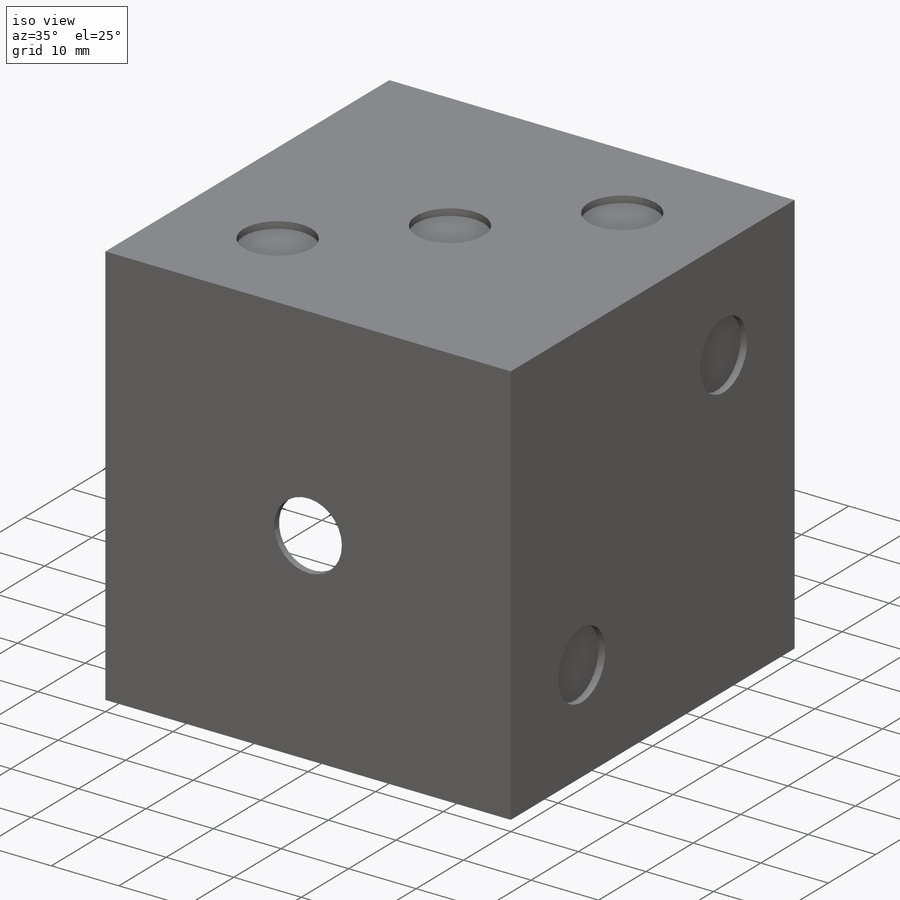
[diagram: iso view]
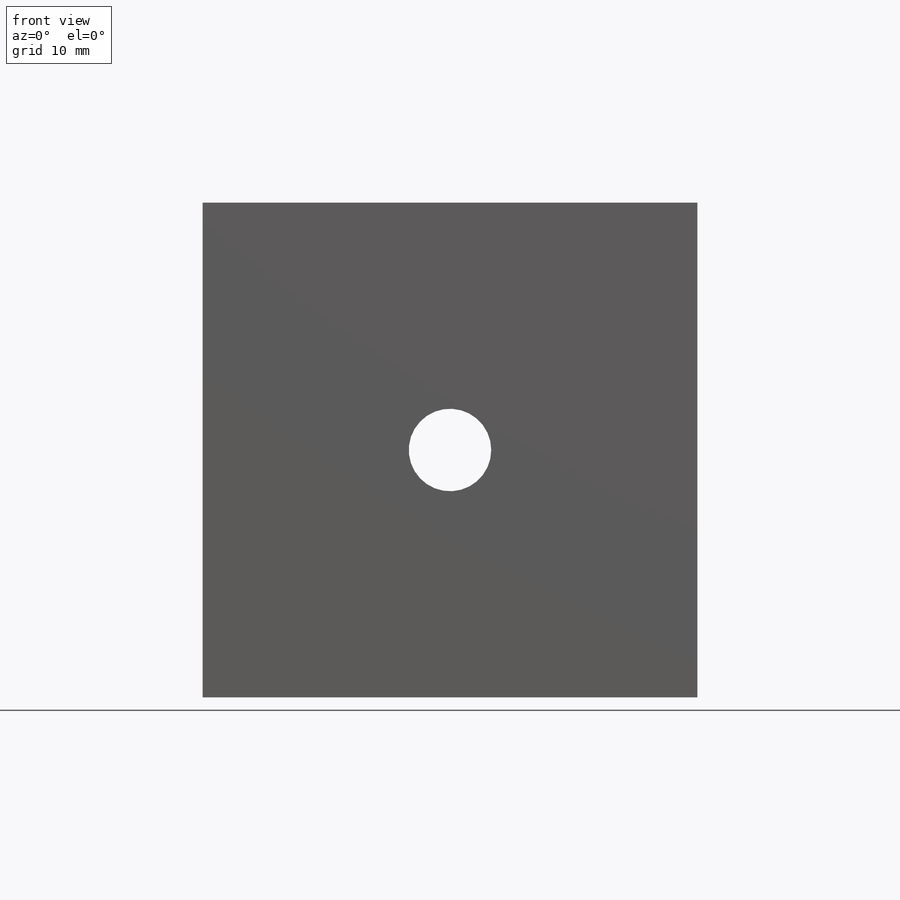
[diagram: front view]
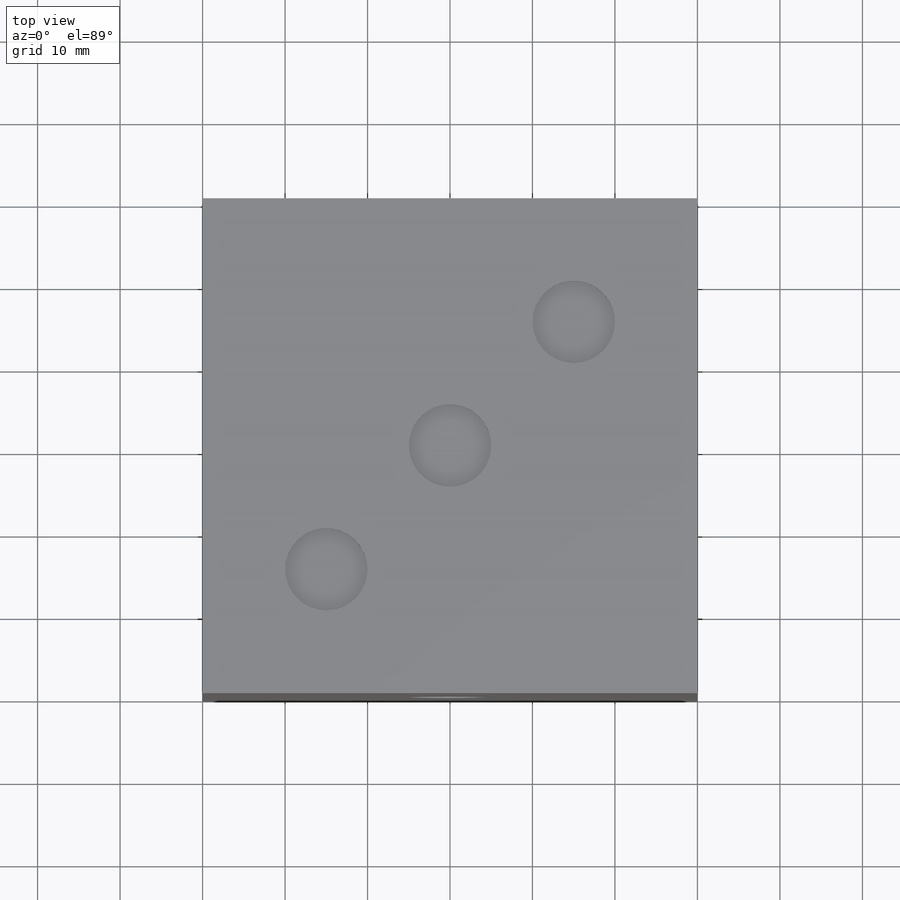
[diagram: top view]
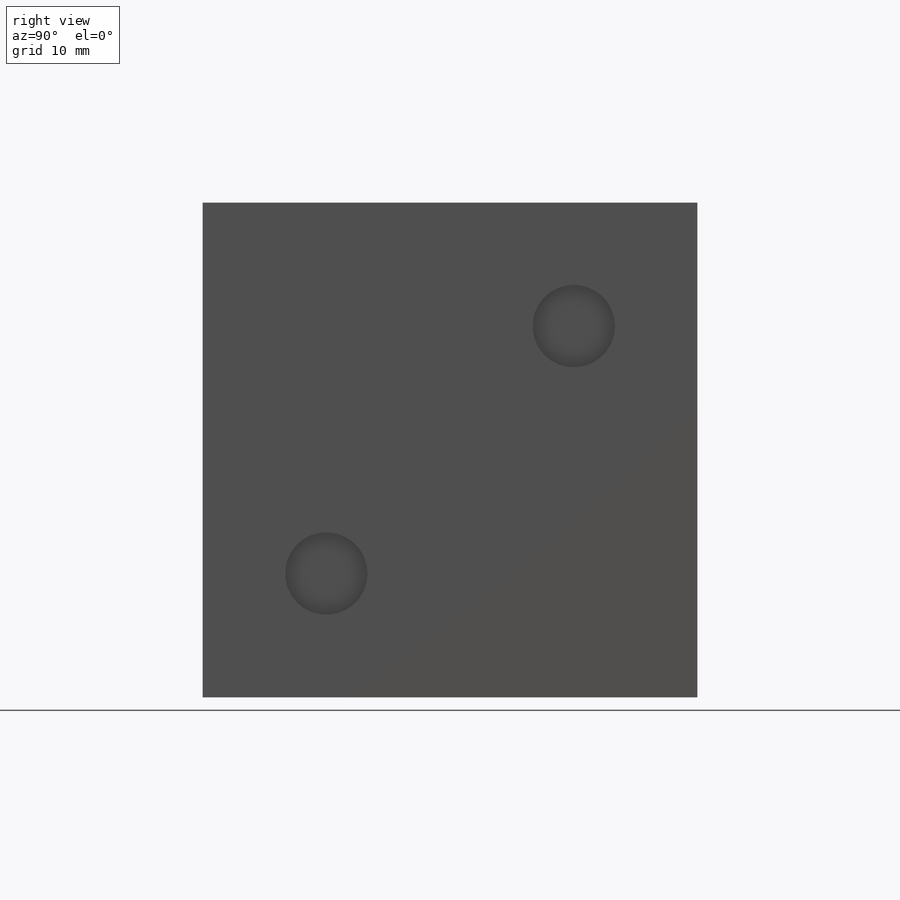
[diagram: right view]
SOLIDWORKS PART (.sldprt)
format: sldprt  version: not decoded by parser v0  size: 468,992 bytes
history: native  units: mm
features: sketch x7, cut_extrude x6, material x1, extrude x1 (+14 scaffold rows collapsed)
feature tree (29):
  scaffold x14  (default folders/planes/origin — collapsed)
  material  "Material <not specified>"
  sketch  "Sketch1"  dims[D1=60.0mm D2=60.0mm]
  extrude  "Extrude1"  Depth=60mm
  sketch  "Sketch2"  dims[D1=15.0mm]
  sketch  "Sketch3"  dims[D1=30.0mm]
  sketch  "Sketch4"  dims[D1=~7.213617mm]
  sketch  "Sketch5"  dims[D1=15.0mm]
  sketch  "Sketch6"  dims[D1=15.0mm]
  sketch  "Sketch7"  dims[D1=30.0mm]
  cut_extrude  "Cut-Extrude1"  Depth=1mm
  cut_extrude  "Cut-Extrude2"  Depth=1mm
  cut_extrude  "Cut-Extrude3"  Depth=1mm
  cut_extrude  "Cut-Extrude4"  Depth=1mm
  cut_extrude  "Cut-Extrude5"  Depth=1mm
  cut_extrude  "Cut-Extrude6"  Depth=1mm
decode coverage: 14 of 14 modeling features carry decoded parameters
note: ~ marks probable driven/reference dimensions
note: suppression state not decoded; provenance and decode notes live in map.json
